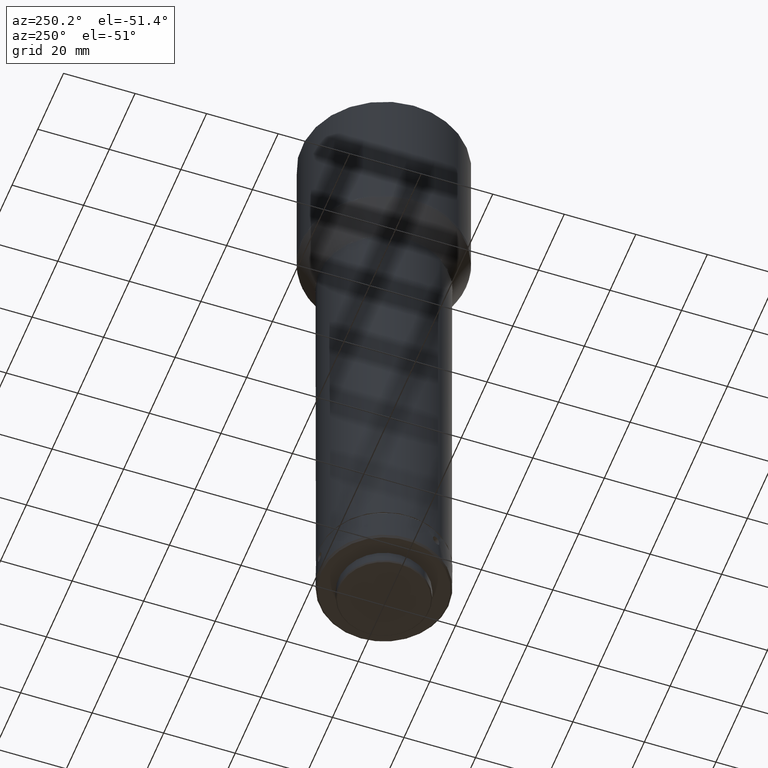
[diagram: clean part render]
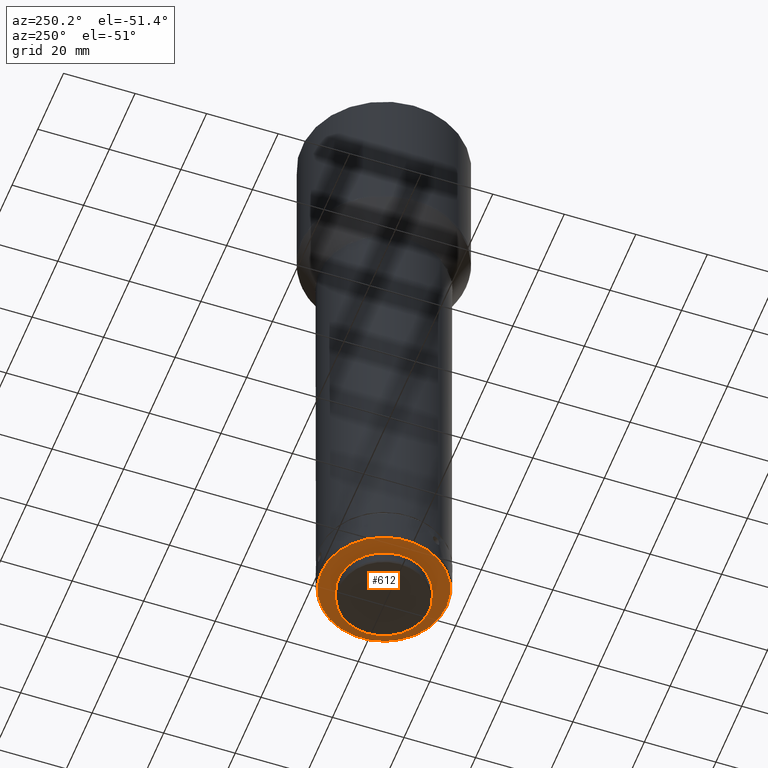
[diagram: same view with one face highlighted and labeled with its STEP entity id]
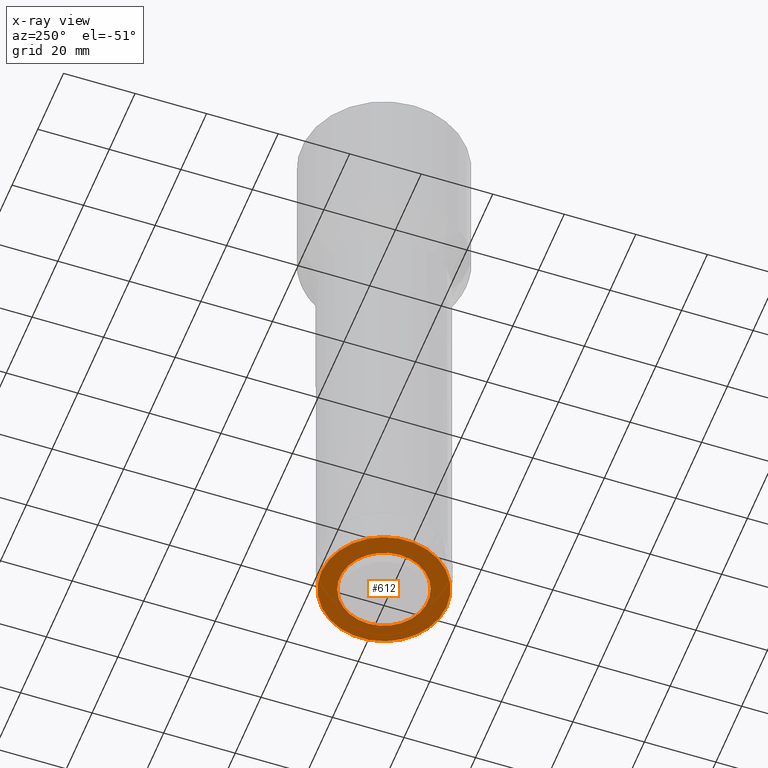
[diagram: x-ray of the same camera — body ghosted, the highlighted face saturated]
A machine part, auxiliary view. The second image highlights one B-rep face of the part: STEP entity #612.
The next image is the same camera in x-ray: the body ghosted, the highlighted face saturated — about 0% of this face is hidden behind the body in this view.
In plain terms, the highlighted planar face has unit normal (0, 0, 1).
Its self-contained STEP definition (entity closure, byte-faithful):
#14 = VERTEX_POINT ( 'NONE', #211 ) ;
#51 = DIRECTION ( 'NONE',  ( -0.000000000000000000, -0.000000000000000000, -1.000000000000000000 ) ) ;
#67 = CARTESIAN_POINT ( 'NONE',  ( 6.030200055689006983E-30, 12.29999999999999893, -910.0834119999999530 ) ) ;
#151 = CARTESIAN_POINT ( 'NONE',  ( 12.29999999999999893, -1.272382910686673902E-30, -910.0834119999999530 ) ) ;
#211 = CARTESIAN_POINT ( 'NONE',  ( 0.000000000000000000, -17.49999999999997513, -910.0834119999999530 ) ) ;
#248 = DIRECTION ( 'NONE',  ( 1.000000000000000000, 0.000000000000000000, 0.000000000000000000 ) ) ;
#324 = DIRECTION ( 'NONE',  ( 1.000000000000000000, 0.000000000000000000, -0.000000000000000000 ) ) ;
#382 = CIRCLE ( 'NONE', #627, 17.49999999999997513 ) ;
#386 = AXIS2_PLACEMENT_3D ( 'NONE', #670, #51, #248 ) ;
#448 = FACE_OUTER_BOUND ( 'NONE', #688, .T. ) ;
#513 = CARTESIAN_POINT ( 'NONE',  ( 0.000000000000000000, 1.541976423090558939E-15, -910.0834119999999530 ) ) ;
#571 = EDGE_CURVE ( 'NONE', #591, #591, #779, .T. ) ;
#591 = VERTEX_POINT ( 'NONE', #151 ) ;
#604 = ORIENTED_EDGE ( 'NONE', *, *, #690, .F. ) ;
#612 = ADVANCED_FACE ( 'NONE', ( #633, #448 ), #829, .F. ) ;
#616 = EDGE_LOOP ( 'NONE', ( #807 ) ) ;
#619 = DIRECTION ( 'NONE',  ( 0.000000000000000000, 0.000000000000000000, 1.000000000000000000 ) ) ;
#627 = AXIS2_PLACEMENT_3D ( 'NONE', #513, #769, #814 ) ;
#633 = FACE_BOUND ( 'NONE', #616, .T. ) ;
#644 = AXIS2_PLACEMENT_3D ( 'NONE', #67, #619, #324 ) ;
#670 = CARTESIAN_POINT ( 'NONE',  ( 6.030200055689006983E-30, -1.272382910686673902E-30, -910.0834119999999530 ) ) ;
#688 = EDGE_LOOP ( 'NONE', ( #604 ) ) ;
#690 = EDGE_CURVE ( 'NONE', #14, #14, #382, .T. ) ;
#769 = DIRECTION ( 'NONE',  ( 0.000000000000000000, -3.083952846180990083E-15, 1.000000000000000000 ) ) ;
#779 = CIRCLE ( 'NONE', #386, 12.29999999999999893 ) ;
#807 = ORIENTED_EDGE ( 'NONE', *, *, #571, .F. ) ;
#814 = DIRECTION ( 'NONE',  ( 0.000000000000000000, -1.000000000000000000, 0.000000000000000000 ) ) ;
#829 = PLANE ( 'NONE',  #644 ) ;